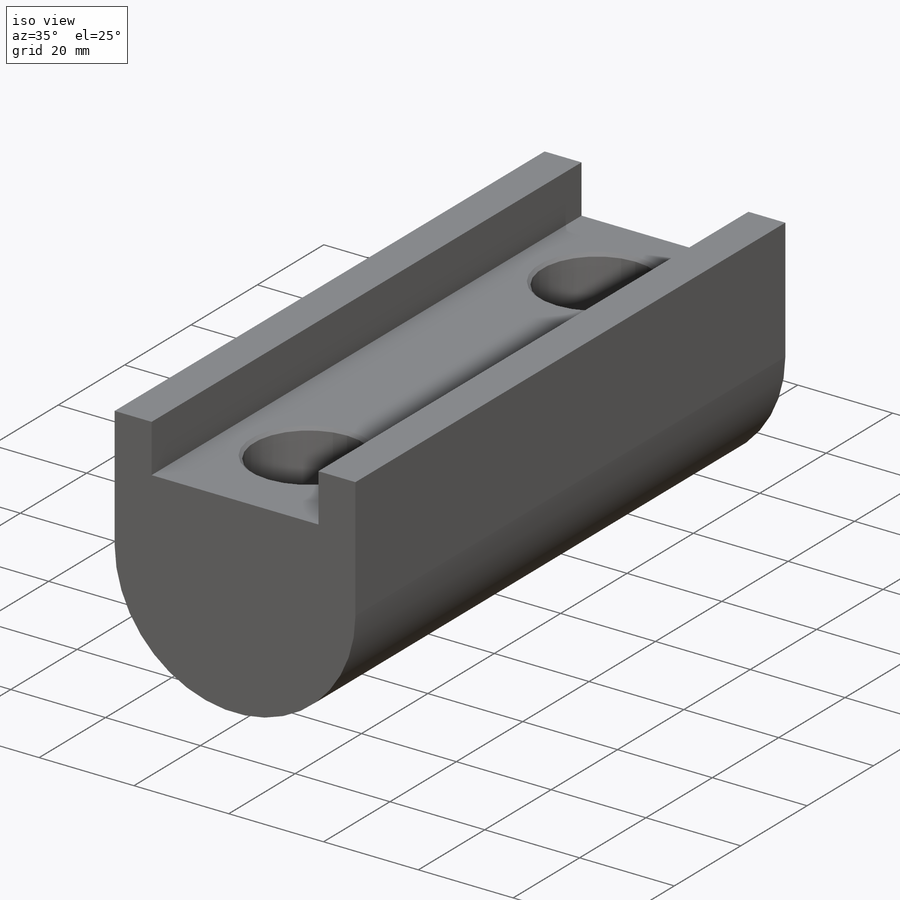
[diagram: iso view]
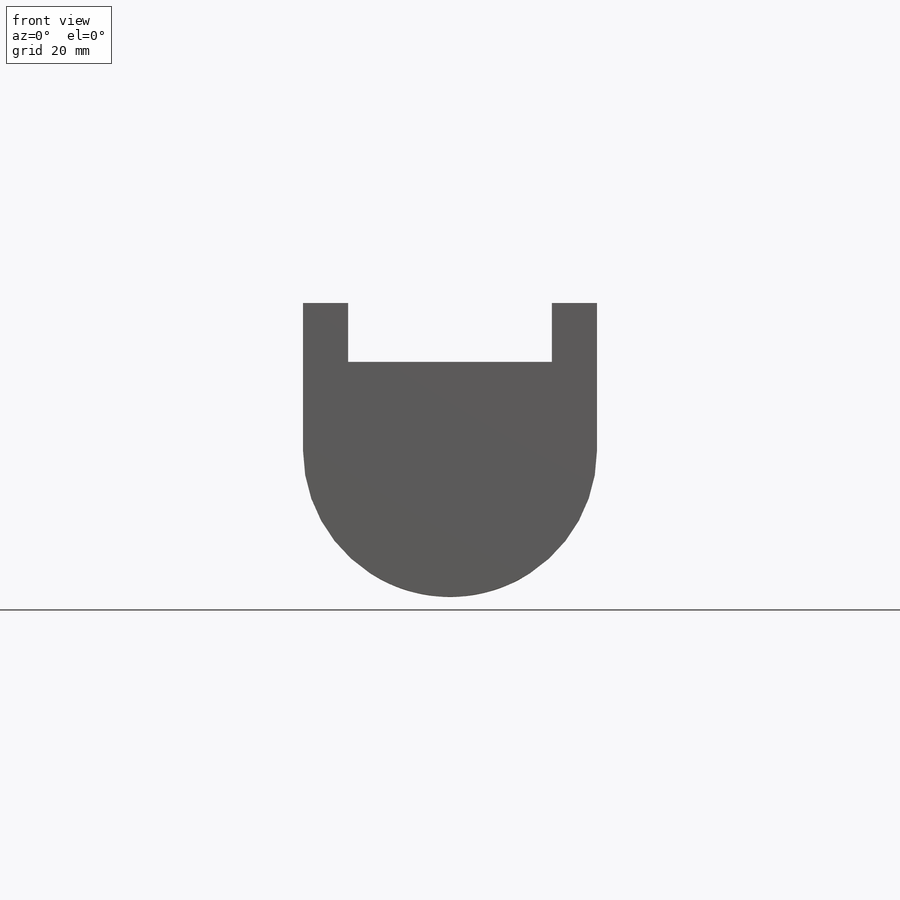
[diagram: front view]
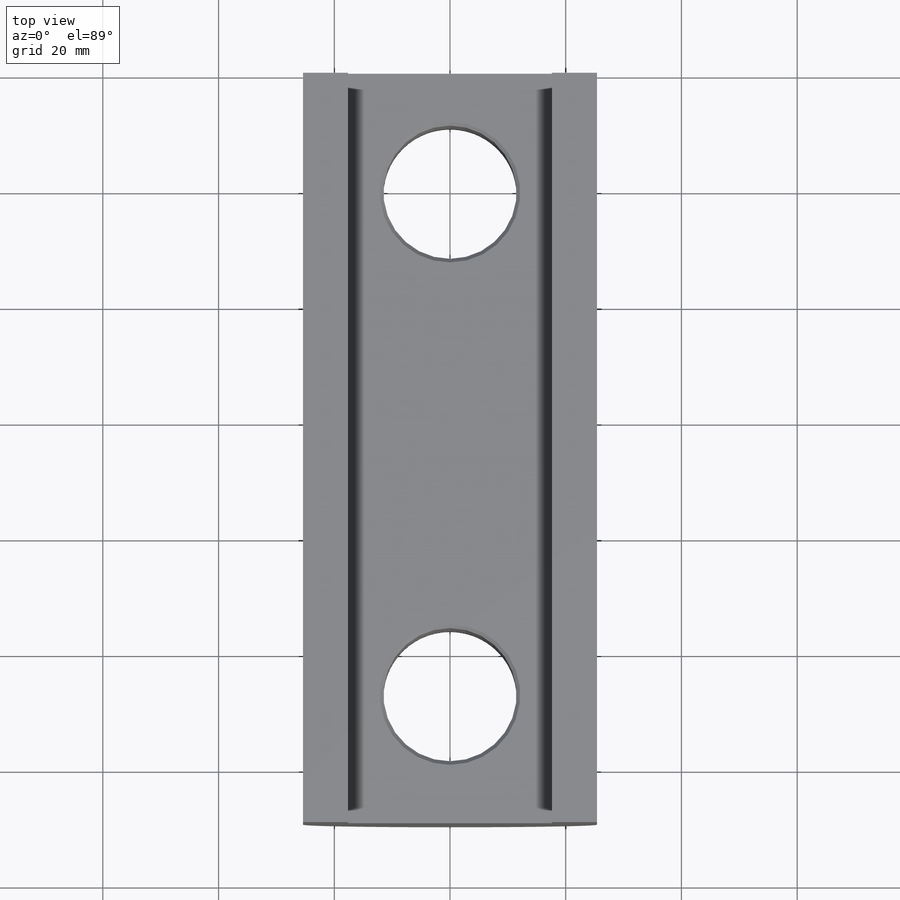
[diagram: top view]
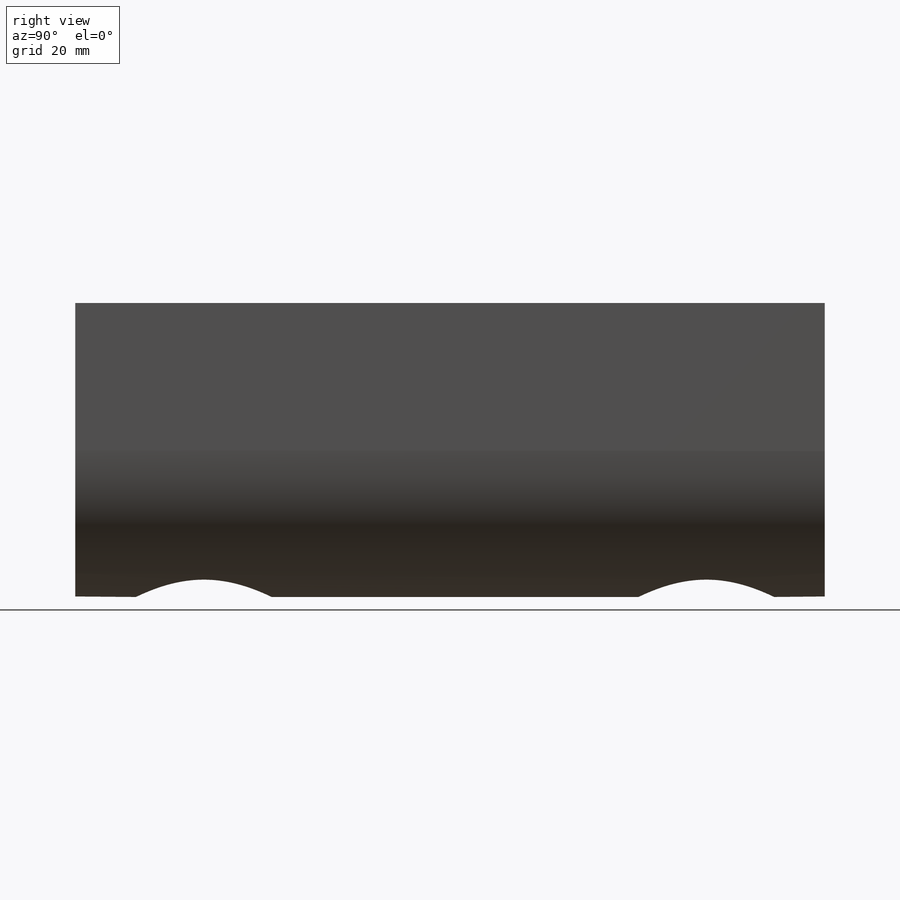
[diagram: right view]
SOLIDWORKS PART (.sldprt)
format: sldprt  version: not decoded by parser v0  size: 252,928 bytes
history: native  units: mm
features: sketch x4, material x1, extrude x1, cut_extrude x1, hole x1, chamfer x1 (+15 scaffold rows collapsed)
feature tree (24):
  scaffold x15  (default folders/planes/origin — collapsed)
  material  "6061-T6 Al"
  sketch  "Sketch1"  dims[c1.D3=~27.81021mm c1.D1=25.4mm c1.D2=25.4mm c1.D4=~55.620421mm c2.D3=50.8mm c2.D4=25.4mm]
  extrude  "Extrude1"  Depth=129.54mm
  sketch  "Sketch4"  dims[c1.D1=~23.01875mm c1.D2=~23.01875mm c1.D3=~23.01875mm c2.D1=17.5895mm c2.D2=17.5895mm c2.D3=17.5895mm c2.D4=17.5895mm c3.D1=17.6022mm c3.D2=17.6022mm c4.D1=7.7978mm c4.D2=35.2044mm]
  cut_extrude  "Extrude3"  Depth=10.16mm
  hole  "29/32 (0.90625) Diameter Hole1"  Diameter=23.01875mm Depth=40.64mm
  sketch  "Sketch6"  dims[D1=22.225mm D2=86.8426mm]
  sketch  "Sketch5"  dims[hole-wizard template sketch: 54 standard entries collapsed; hole parameters kept: c17.Thru Hole Dia.=~23.01875mm c17.Thru Hole Depth=40.64mm c17.Near C'Sink Dia.=24.2824mm c17.D4=~3.666174mm c17.Near C'Sink Angle=90.0deg]
  chamfer  "Chamfer2"  Distance=0.7112mm Angle=45deg
decode coverage: 8 of 8 modeling features carry decoded parameters
note: ~ marks probable driven/reference dimensions
note: suppression state not decoded; provenance and decode notes live in map.json
